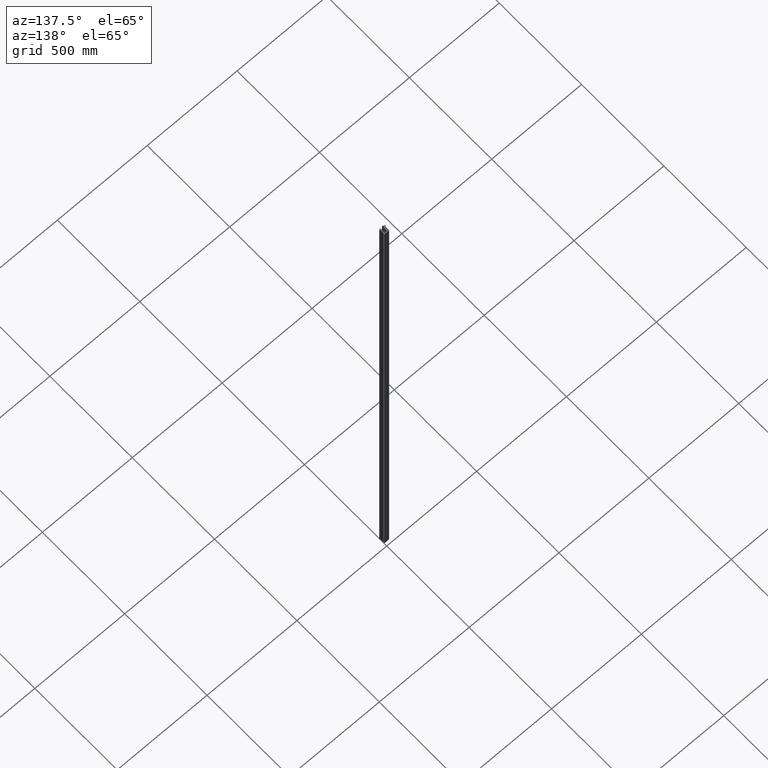
[diagram: clean part render]
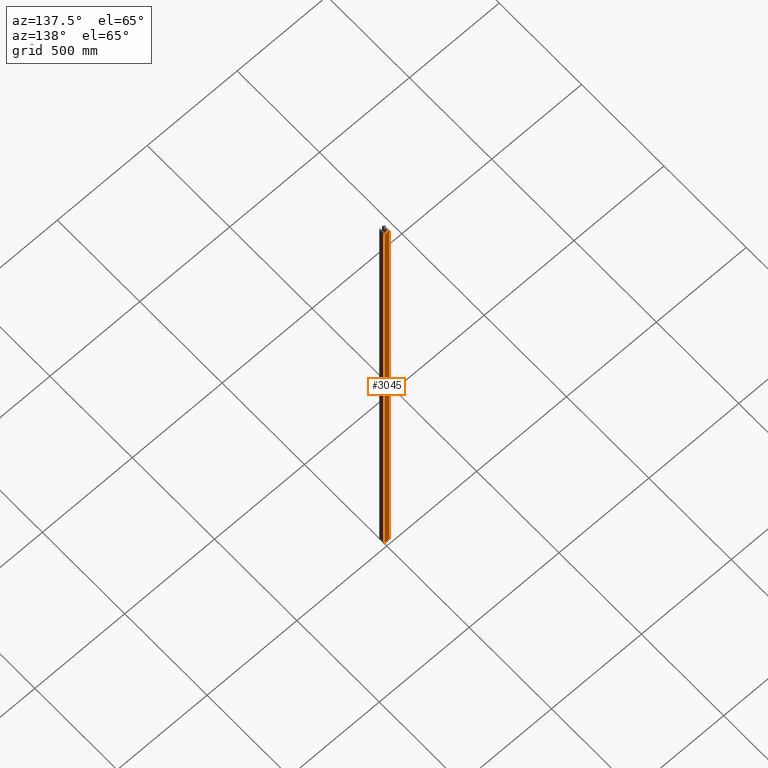
[diagram: same view with one face highlighted and labeled with its STEP entity id]
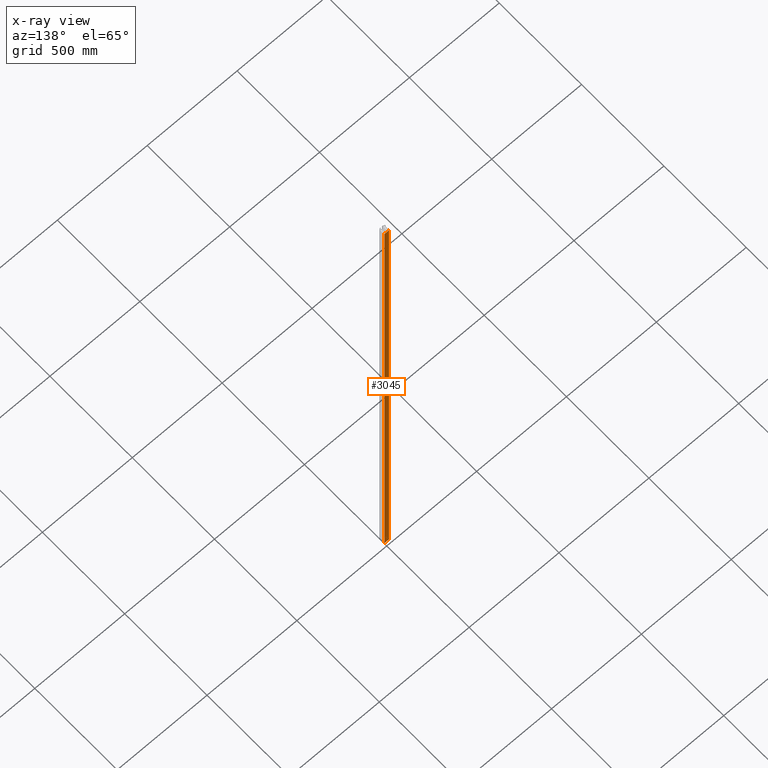
[diagram: x-ray of the same camera — body ghosted, the highlighted face saturated]
A machine part, auxiliary view. The second image highlights one B-rep face of the part: STEP entity #3045.
The next image is the same camera in x-ray: the body ghosted, the highlighted face saturated — about 0% of this face is hidden behind the body in this view.
In plain terms, the highlighted planar face has unit normal (0, -1, 0).
Its self-contained STEP definition (entity closure, byte-faithful):
#692 = DIRECTION ( 'NONE',  ( -0.000000000000000000, -0.000000000000000000, -1.000000000000000000 ) ) ;
#940 = ORIENTED_EDGE ( 'NONE', *, *, #17684, .F. ) ;
#979 = VECTOR ( 'NONE', #14441, 1000.000000000000000 ) ;
#1680 = DIRECTION ( 'NONE',  ( 1.224646799147350989E-16, -1.000000000000000000, 0.000000000000000000 ) ) ;
#2110 = VERTEX_POINT ( 'NONE', #9055 ) ;
#2235 = VERTEX_POINT ( 'NONE', #17815 ) ;
#2839 = VECTOR ( 'NONE', #20069, 1000.000000000000000 ) ;
#3045 = ADVANCED_FACE ( 'NONE', ( #8308 ), #17551, .F. ) ;
#3815 = CARTESIAN_POINT ( 'NONE',  ( 13.49999999924990846, 1.653273178757062831E-15, 1500.000000000000000 ) ) ;
#3831 = ORIENTED_EDGE ( 'NONE', *, *, #15565, .F. ) ;
#3854 = DIRECTION ( 'NONE',  ( -1.000000000000000000, -1.224646799147350989E-16, 0.000000000000000000 ) ) ;
#4764 = DIRECTION ( 'NONE',  ( 1.000000000000000000, 1.224646799147350989E-16, 0.000000000000000000 ) ) ;
#5183 = LINE ( 'NONE', #6456, #979 ) ;
#5413 = VERTEX_POINT ( 'NONE', #3815 ) ;
#6456 = CARTESIAN_POINT ( 'NONE',  ( 13.49999999924990846, 1.653273178757062831E-15, 1500.000000000000000 ) ) ;
#7113 = LINE ( 'NONE', #10148, #13999 ) ;
#7519 = ORIENTED_EDGE ( 'NONE', *, *, #12208, .T. ) ;
#8111 = CARTESIAN_POINT ( 'NONE',  ( -13.49999999924990846, -1.653273178757064014E-15, 1500.000000000000000 ) ) ;
#8308 = FACE_OUTER_BOUND ( 'NONE', #10810, .T. ) ;
#8544 = CARTESIAN_POINT ( 'NONE',  ( -13.49999999924990846, -1.653273178757064014E-15, 1500.000000000000000 ) ) ;
#9055 = CARTESIAN_POINT ( 'NONE',  ( 13.49999999924990846, 1.653273178757062831E-15, -1500.000000000000000 ) ) ;
#9549 = VERTEX_POINT ( 'NONE', #8111 ) ;
#10148 = CARTESIAN_POINT ( 'NONE',  ( 0.000000000000000000, 0.000000000000000000, 1500.000000000000000 ) ) ;
#10810 = EDGE_LOOP ( 'NONE', ( #17602, #940, #3831, #7519 ) ) ;
#11716 = LINE ( 'NONE', #20133, #2839 ) ;
#12208 = EDGE_CURVE ( 'NONE', #5413, #2110, #5183, .T. ) ;
#12755 = LINE ( 'NONE', #8544, #16920 ) ;
#13999 = VECTOR ( 'NONE', #3854, 1000.000000000000000 ) ;
#14441 = DIRECTION ( 'NONE',  ( 0.000000000000000000, 0.000000000000000000, -1.000000000000000000 ) ) ;
#15565 = EDGE_CURVE ( 'NONE', #5413, #9549, #7113, .T. ) ;
#15691 = CARTESIAN_POINT ( 'NONE',  ( 0.000000000000000000, 0.000000000000000000, 1500.000000000000000 ) ) ;
#16920 = VECTOR ( 'NONE', #692, 1000.000000000000000 ) ;
#17551 = PLANE ( 'NONE',  #18366 ) ;
#17602 = ORIENTED_EDGE ( 'NONE', *, *, #20131, .T. ) ;
#17684 = EDGE_CURVE ( 'NONE', #9549, #2235, #12755, .T. ) ;
#17815 = CARTESIAN_POINT ( 'NONE',  ( -13.49999999924990846, -1.653273178757064014E-15, -1500.000000000000000 ) ) ;
#18366 = AXIS2_PLACEMENT_3D ( 'NONE', #15691, #1680, #4764 ) ;
#20069 = DIRECTION ( 'NONE',  ( -1.000000000000000000, -1.224646799147350989E-16, 0.000000000000000000 ) ) ;
#20131 = EDGE_CURVE ( 'NONE', #2110, #2235, #11716, .T. ) ;
#20133 = CARTESIAN_POINT ( 'NONE',  ( 0.000000000000000000, 0.000000000000000000, -1500.000000000000000 ) ) ;